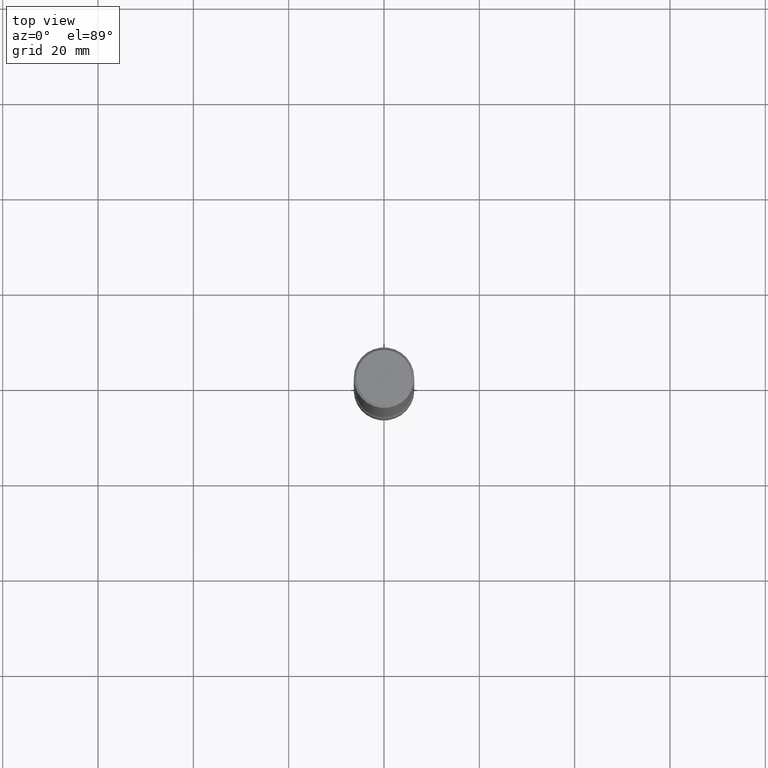
[diagram: clean part render]
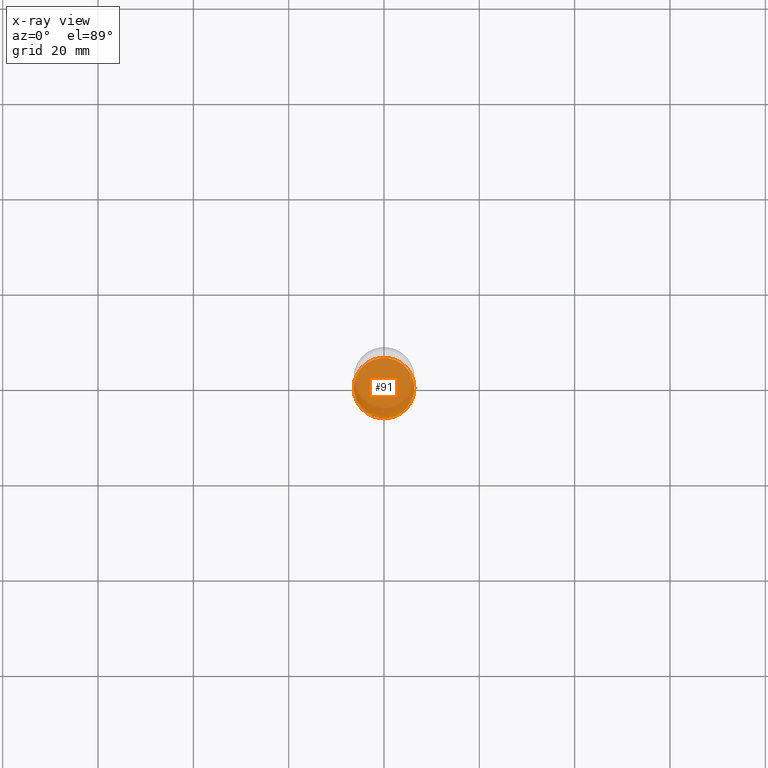
[diagram: x-ray — body ghosted, one internal face saturated and labeled with its STEP entity id]
A machine part, top view, then the same camera in x-ray: the body is ghosted and one INTERNAL B-rep face — a face not visible from any outside direction — is saturated and labeled: STEP entity #91.
In plain terms, the highlighted planar face has unit normal (0, -0, -1).
Its self-contained STEP definition (entity closure, byte-faithful):
#2 = FACE_OUTER_BOUND ( 'NONE', #271, .T. ) ;
#32 = DIRECTION ( 'NONE',  ( 1.000000000000000000, -6.982962677686265922E-15, 0.000000000000000000 ) ) ;
#46 = PLANE ( 'NONE',  #549 ) ;
#91 = ADVANCED_FACE ( 'NONE', ( #2 ), #46, .F. ) ;
#94 = EDGE_CURVE ( 'NONE', #494, #388, #106, .T. ) ;
#101 = DIRECTION ( 'NONE',  ( 1.000000000000000000, -6.982962677686265922E-15, 0.000000000000000000 ) ) ;
#106 = CIRCLE ( 'NONE', #338, 0.2500000000000001665 ) ;
#129 = CARTESIAN_POINT ( 'NONE',  ( 1.222734403092568523E-28, -1.745740669421572989E-14, -5.000000000000000000 ) ) ;
#141 = DIRECTION ( 'NONE',  ( -2.445468806185136597E-29, 3.491481338843145583E-15, 1.000000000000000000 ) ) ;
#176 = CARTESIAN_POINT ( 'NONE',  ( 1.222734403092568523E-28, -1.745740669421572989E-14, -5.000000000000000000 ) ) ;
#271 = EDGE_LOOP ( 'NONE', ( #330, #343 ) ) ;
#288 = EDGE_CURVE ( 'NONE', #388, #494, #500, .T. ) ;
#295 = DIRECTION ( 'NONE',  ( -2.445468806185136597E-29, 3.491481338843145583E-15, 1.000000000000000000 ) ) ;
#318 = CARTESIAN_POINT ( 'NONE',  ( -0.2500000000000001665, -1.737441830415440257E-14, -5.000000000000000000 ) ) ;
#330 = ORIENTED_EDGE ( 'NONE', *, *, #288, .T. ) ;
#338 = AXIS2_PLACEMENT_3D ( 'NONE', #352, #141, #101 ) ;
#343 = ORIENTED_EDGE ( 'NONE', *, *, #94, .T. ) ;
#349 = AXIS2_PLACEMENT_3D ( 'NONE', #129, #295, #32 ) ;
#352 = CARTESIAN_POINT ( 'NONE',  ( 1.222734403092568523E-28, -1.745740669421572989E-14, -5.000000000000000000 ) ) ;
#388 = VERTEX_POINT ( 'NONE', #480 ) ;
#391 = DIRECTION ( 'NONE',  ( -1.000000000000000000, 6.982962677686265922E-15, -4.876176775795935793E-29 ) ) ;
#480 = CARTESIAN_POINT ( 'NONE',  ( 0.2500000000000001665, -1.920314736363729656E-14, -5.000000000000000000 ) ) ;
#481 = DIRECTION ( 'NONE',  ( 2.438088387897960049E-29, -3.491481338843145188E-15, -1.000000000000000000 ) ) ;
#494 = VERTEX_POINT ( 'NONE', #318 ) ;
#500 = CIRCLE ( 'NONE', #349, 0.2500000000000001665 ) ;
#549 = AXIS2_PLACEMENT_3D ( 'NONE', #176, #481, #391 ) ;